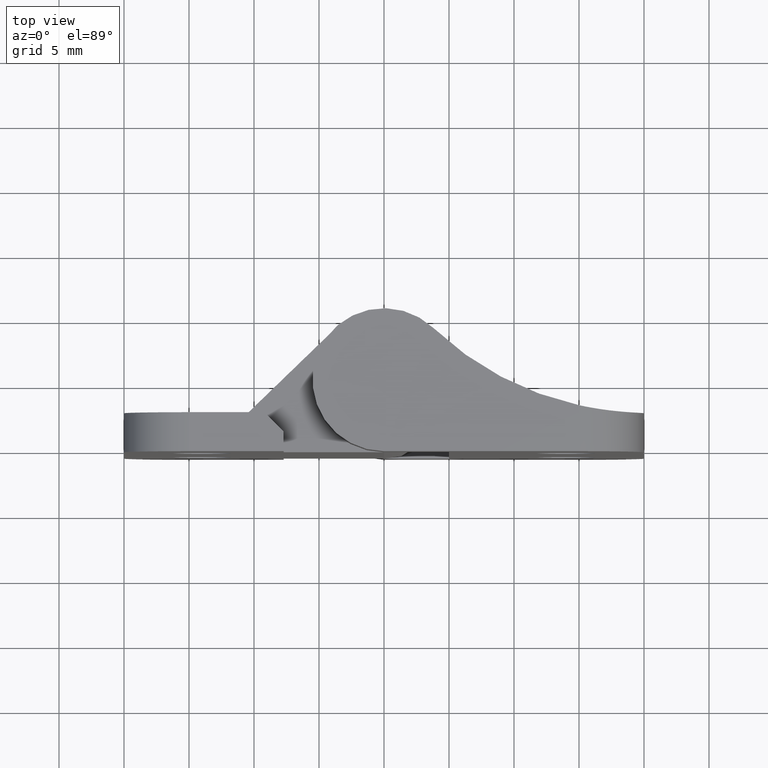
[diagram: clean part render]
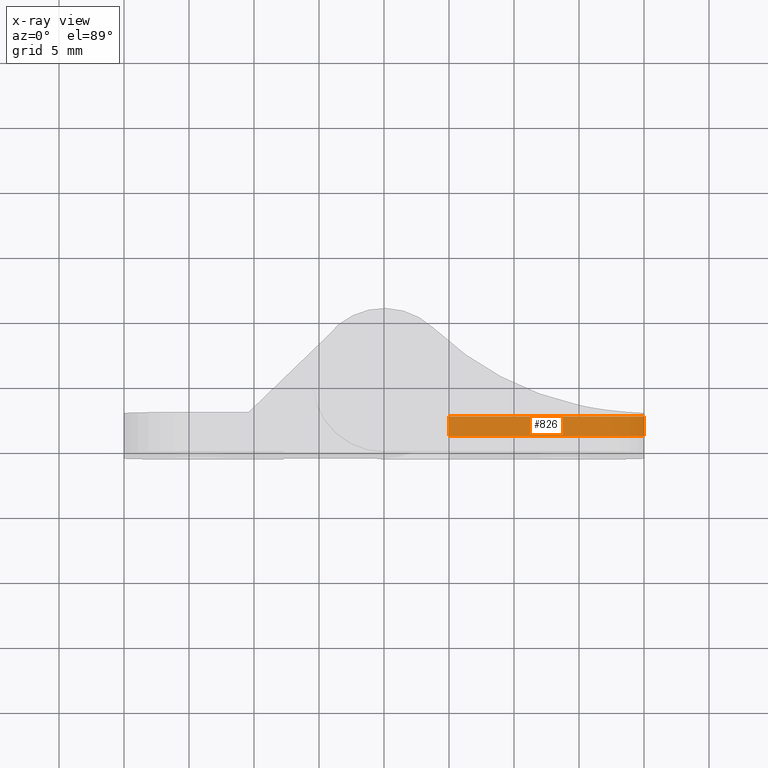
[diagram: x-ray — body ghosted, one internal face saturated and labeled with its STEP entity id]
A machine part, top view, then the same camera in x-ray: the body is ghosted and one INTERNAL B-rep face — a face not visible from any outside direction — is saturated and labeled: STEP entity #826.
In plain terms, the highlighted planar face has unit normal (0, -0.5547, 0.8321).
Its self-contained STEP definition (entity closure, byte-faithful):
#116=LINE('',#1383,#189);
#122=LINE('',#1394,#195);
#124=LINE('',#1398,#197);
#126=LINE('',#1401,#199);
#189=VECTOR('',#1128,1.802775637732);
#195=VECTOR('',#1138,15.);
#197=VECTOR('',#1142,1.80277563773199);
#199=VECTOR('',#1146,15.);
#227=PLANE('',#910);
#274=FACE_OUTER_BOUND('',#337,.T.);
#337=EDGE_LOOP('',(#761,#762,#763,#764));
#438=VERTEX_POINT('',#1381);
#439=VERTEX_POINT('',#1382);
#442=VERTEX_POINT('',#1393);
#443=VERTEX_POINT('',#1397);
#540=EDGE_CURVE('',#438,#439,#116,.T.);
#546=EDGE_CURVE('',#442,#438,#122,.T.);
#548=EDGE_CURVE('',#443,#442,#124,.T.);
#550=EDGE_CURVE('',#443,#439,#126,.T.);
#761=ORIENTED_EDGE('',*,*,#540,.F.);
#762=ORIENTED_EDGE('',*,*,#546,.F.);
#763=ORIENTED_EDGE('',*,*,#548,.F.);
#764=ORIENTED_EDGE('',*,*,#550,.T.);
#826=ADVANCED_FACE('',(#274),#227,.F.);
#910=AXIS2_PLACEMENT_3D('',#1402,#1147,#1148);
#1128=DIRECTION('',(0.,-0.832050294337844,-0.554700196225229));
#1138=DIRECTION('',(-1.,0.,0.));
#1142=DIRECTION('',(0.,0.832050294337844,0.554700196225229));
#1146=DIRECTION('',(-1.,0.,0.));
#1147=DIRECTION('center_axis',(0.,-0.554700196225229,0.832050294337844));
#1148=DIRECTION('ref_axis',(0.,0.832050294337844,0.554700196225229));
#1381=CARTESIAN_POINT('',(5.,-2.5,0.));
#1382=CARTESIAN_POINT('',(5.,-4.,-1.));
#1383=CARTESIAN_POINT('',(5.,-6.48076923076923,-2.65384615384615));
#1393=CARTESIAN_POINT('',(20.,-2.5,0.));
#1394=CARTESIAN_POINT('',(11.5647642431049,-2.5,-4.85722573273506E-16));
#1397=CARTESIAN_POINT('',(20.,-4.,-1.));
#1398=CARTESIAN_POINT('',(20.,-4.28846153846154,-1.19230769230769));
#1401=CARTESIAN_POINT('',(20.,-4.,-1.));
#1402=CARTESIAN_POINT('Origin',(20.,-4.,-1.));